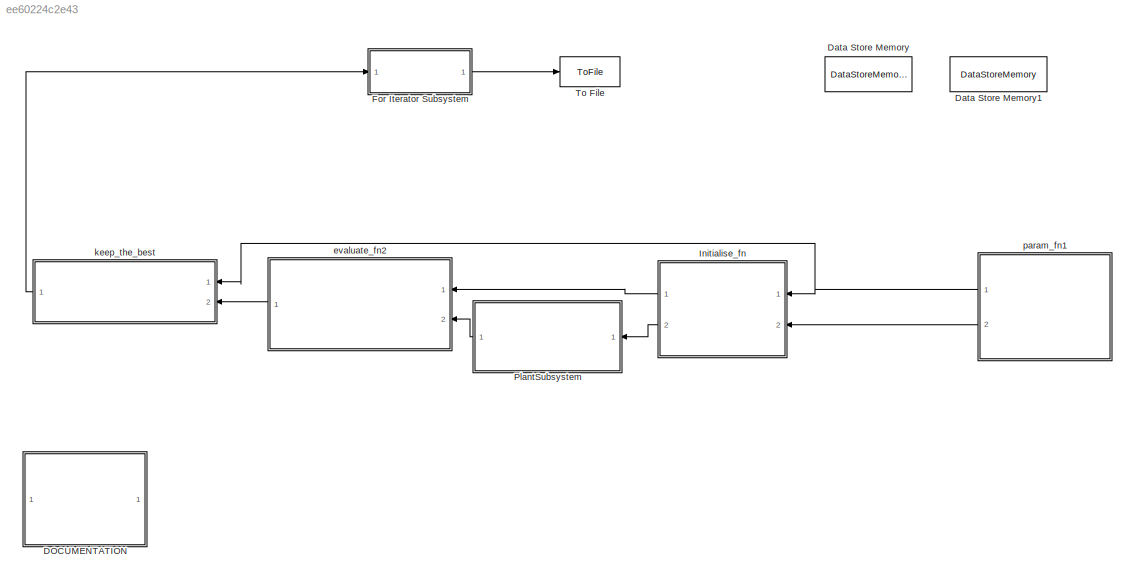
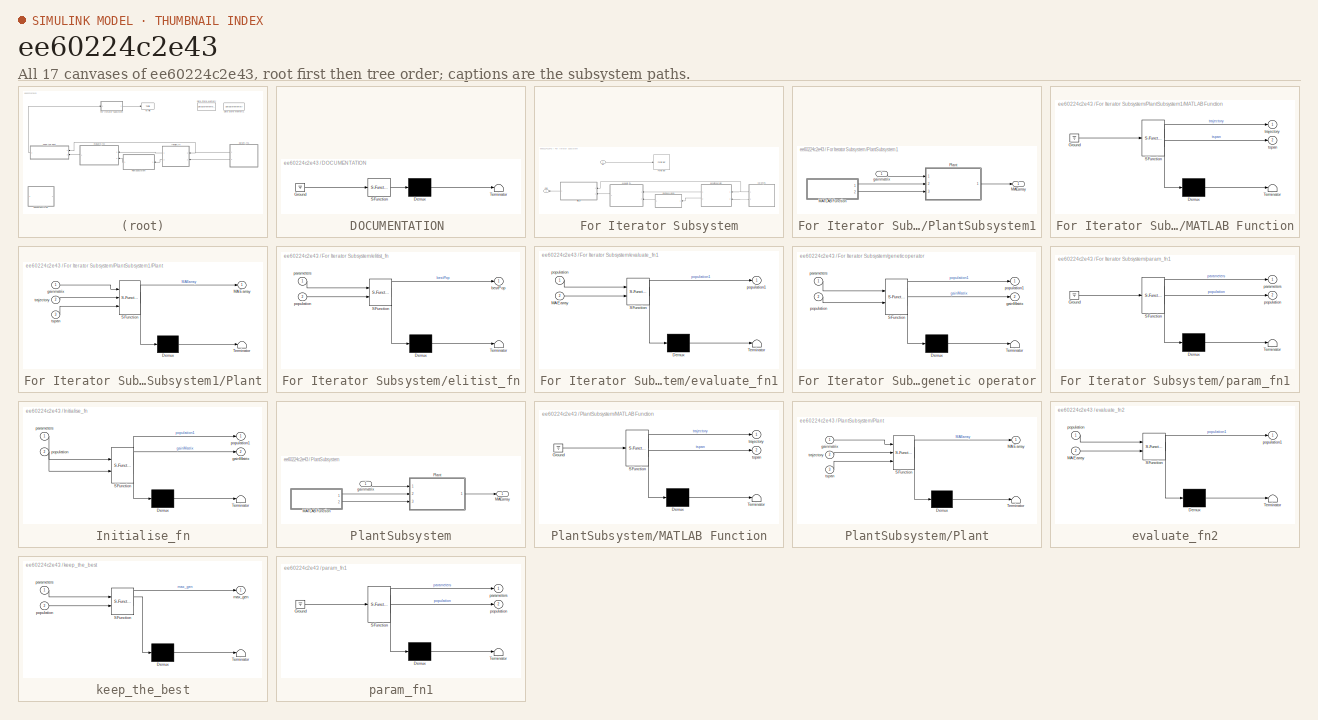
[diagram: thumbnail index - all 17 canvases of the model, root first then tree order]
MODEL slx_ee60224c2e43
KIND model
CONFIG AbsTol = auto
CONFIG FixedStep = auto
CONFIG MaxStep = auto
CONFIG MinStep = auto
CONFIG RelTol = 1e-3
CONFIG SampleTimeConstraint = Unconstrained
CONFIG Solver = ode45
CONFIG SolverMode = Auto
CONFIG SolverName = ode45
CONFIG StartTime = 0.0
CONFIG StopTime = 1
BLOCK [SubSystem] DOCUMENTATION 
  ErrorFcn = Stateflow.Translate.translate
  PermitHierarchicalResolution = ExplicitOnly
  Ports = []
  RequestExecContextInheritance = off
  SFBlockType = MATLAB Function
  TreatAsAtomicUnit = on
BLOCK [Demux] DOCUMENTATION / Demux 
  Outputs = 1
  Ports = [1, 1]
BLOCK [Ground] DOCUMENTATION / Ground 
BLOCK [S-Function] DOCUMENTATION / SFunction 
  EnableBusSupport = on
  FunctionName = sf_sfun
  PortCounts = [1 1]
  Ports = [1, 1]
  Tag = Stateflow S-Function VTOL_simulink_model3 4
BLOCK [Terminator] DOCUMENTATION / Terminator 
BLOCK [DataStoreMemory] Data Store Memory
  DataStoreName = PARAMETERS
  InitialValue = [0 0 0 0 0 ]
  OutDataTypeStr = double
  SignalType = real
BLOCK [DataStoreMemory] Data Store Memory1
  DataStoreName = POPULATION
  InitialValue = zeros(101,9)
  OutDataTypeStr = double
  SignalType = real
BLOCK [SubSystem] For Iterator Subsystem
  Ports = [1, 1]
  RequestExecContextInheritance = off
  TreatAsAtomicUnit = on
BLOCK [ForIterator] For Iterator Subsystem/For Iterator
  IterationSource = external
  Ports = [1]
  ResetStates = reset
  ShowIterationPort = off
BLOCK [Inport] For Iterator Subsystem/In1
  IconDisplay = Port number
BLOCK [Outport] For Iterator Subsystem/Out1
  IconDisplay = Port number
BLOCK [SubSystem] For Iterator Subsystem/PlantSubsystem1
  Ports = [1, 1]
  RequestExecContextInheritance = off
BLOCK [Outport] For Iterator Subsystem/PlantSubsystem1/MAEarray
  IconDisplay = Port number
BLOCK [SubSystem] For Iterator Subsystem/PlantSubsystem1/MATLAB Function
  ErrorFcn = Stateflow.Translate.translate
  PermitHierarchicalResolution = ExplicitOnly
  Ports = [0, 2]
  RequestExecContextInheritance = off
  SFBlockType = MATLAB Function
  TreatAsAtomicUnit = on
BLOCK [Demux] For Iterator Subsystem/PlantSubsystem1/MATLAB Function/ Demux 
  Outputs = 1
  Ports = [1, 1]
BLOCK [Ground] For Iterator Subsystem/PlantSubsystem1/MATLAB Function/ Ground 
BLOCK [S-Function] For Iterator Subsystem/PlantSubsystem1/MATLAB Function/ SFunction 
  EnableBusSupport = on
  FunctionName = sf_sfun
  PortCounts = [1 3]
  Ports = [1, 3]
  Tag = Stateflow S-Function VTOL_simulink_model3 14
BLOCK [Terminator] For Iterator Subsystem/PlantSubsystem1/MATLAB Function/ Terminator 
BLOCK [Outport] For Iterator Subsystem/PlantSubsystem1/MATLAB Function/trajectory
  IconDisplay = Port number
BLOCK [Outport] For Iterator Subsystem/PlantSubsystem1/MATLAB Function/tspan
  IconDisplay = Port number
  Port = 2
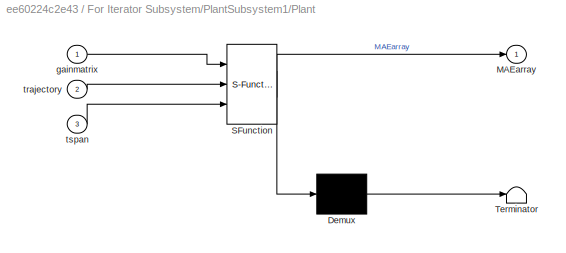
BLOCK [SubSystem] For Iterator Subsystem/PlantSubsystem1/Plant
  ErrorFcn = Stateflow.Translate.translate
  PermitHierarchicalResolution = ExplicitOnly
  Ports = [3, 1]
  RequestExecContextInheritance = off
  SFBlockType = MATLAB Function
  TreatAsAtomicUnit = on
BLOCK [Demux] For Iterator Subsystem/PlantSubsystem1/Plant/ Demux 
  Outputs = 1
  Ports = [1, 1]
BLOCK [S-Function] For Iterator Subsystem/PlantSubsystem1/Plant/ SFunction 
  EnableBusSupport = on
  FunctionName = sf_sfun
  PortCounts = [3 2]
  Ports = [3, 2]
  Tag = Stateflow S-Function VTOL_simulink_model3 15
BLOCK [Terminator] For Iterator Subsystem/PlantSubsystem1/Plant/ Terminator 
BLOCK [Outport] For Iterator Subsystem/PlantSubsystem1/Plant/MAEarray
  IconDisplay = Port number
BLOCK [Inport] For Iterator Subsystem/PlantSubsystem1/Plant/gainmatrix
  IconDisplay = Port number
BLOCK [Inport] For Iterator Subsystem/PlantSubsystem1/Plant/trajectory
  IconDisplay = Port number
  Port = 2
BLOCK [Inport] For Iterator Subsystem/PlantSubsystem1/Plant/tspan
  IconDisplay = Port number
  Port = 3
BLOCK [Inport] For Iterator Subsystem/PlantSubsystem1/gainmatrix
  IconDisplay = Port number
BLOCK [SubSystem] For Iterator Subsystem/elitist_fn
  ErrorFcn = Stateflow.Translate.translate
  PermitHierarchicalResolution = ExplicitOnly
  Ports = [2, 1]
  RequestExecContextInheritance = off
  SFBlockType = MATLAB Function
  TreatAsAtomicUnit = on
BLOCK [Demux] For Iterator Subsystem/elitist_fn/ Demux 
  Outputs = 1
  Ports = [1, 1]
BLOCK [S-Function] For Iterator Subsystem/elitist_fn/ SFunction 
  EnableBusSupport = on
  FunctionName = sf_sfun
  PortCounts = [2 2]
  Ports = [2, 2]
  Tag = Stateflow S-Function VTOL_simulink_model3 9
BLOCK [Terminator] For Iterator Subsystem/elitist_fn/ Terminator 
BLOCK [Outport] For Iterator Subsystem/elitist_fn/bestPop
  IconDisplay = Port number
BLOCK [Inport] For Iterator Subsystem/elitist_fn/parameters
  IconDisplay = Port number
BLOCK [Inport] For Iterator Subsystem/elitist_fn/population
  IconDisplay = Port number
  Port = 2
BLOCK [SubSystem] For Iterator Subsystem/evaluate_fn1
  ErrorFcn = Stateflow.Translate.translate
  PermitHierarchicalResolution = ExplicitOnly
  Ports = [2, 1]
  RequestExecContextInheritance = off
  SFBlockType = MATLAB Function
  TreatAsAtomicUnit = on
BLOCK [Demux] For Iterator Subsystem/evaluate_fn1/ Demux 
  Outputs = 1
  Ports = [1, 1]
BLOCK [S-Function] For Iterator Subsystem/evaluate_fn1/ SFunction 
  EnableBusSupport = on
  FunctionName = sf_sfun
  PortCounts = [2 2]
  Ports = [2, 2]
  Tag = Stateflow S-Function VTOL_simulink_model3 10
BLOCK [Terminator] For Iterator Subsystem/evaluate_fn1/ Terminator 
BLOCK [Inport] For Iterator Subsystem/evaluate_fn1/MAEarray
  IconDisplay = Port number
  Port = 2
BLOCK [Inport] For Iterator Subsystem/evaluate_fn1/population
  IconDisplay = Port number
BLOCK [Outport] For Iterator Subsystem/evaluate_fn1/population1
  IconDisplay = Port number
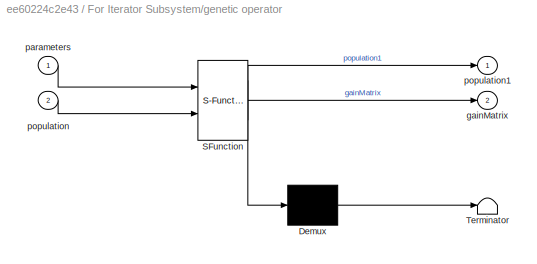
BLOCK [SubSystem] For Iterator Subsystem/genetic operator
  ErrorFcn = Stateflow.Translate.translate
  PermitHierarchicalResolution = ExplicitOnly
  Ports = [2, 2]
  RequestExecContextInheritance = off
  SFBlockType = MATLAB Function
  TreatAsAtomicUnit = on
BLOCK [Demux] For Iterator Subsystem/genetic operator/ Demux 
  Outputs = 1
  Ports = [1, 1]
BLOCK [S-Function] For Iterator Subsystem/genetic operator/ SFunction 
  EnableBusSupport = on
  FunctionName = sf_sfun
  PortCounts = [2 3]
  Ports = [2, 3]
  Tag = Stateflow S-Function VTOL_simulink_model3 11
BLOCK [Terminator] For Iterator Subsystem/genetic operator/ Terminator 
BLOCK [Outport] For Iterator Subsystem/genetic operator/gainMatrix
  IconDisplay = Port number
  Port = 2
BLOCK [Inport] For Iterator Subsystem/genetic operator/parameters
  IconDisplay = Port number
BLOCK [Inport] For Iterator Subsystem/genetic operator/population
  IconDisplay = Port number
  Port = 2
BLOCK [Outport] For Iterator Subsystem/genetic operator/population1
  IconDisplay = Port number
BLOCK [SubSystem] For Iterator Subsystem/param_fn1
  ErrorFcn = Stateflow.Translate.translate
  PermitHierarchicalResolution = ExplicitOnly
  Ports = [0, 2]
  RequestExecContextInheritance = off
  SFBlockType = MATLAB Function
  TreatAsAtomicUnit = on
BLOCK [Demux] For Iterator Subsystem/param_fn1/ Demux 
  Outputs = 1
  Ports = [1, 1]
BLOCK [Ground] For Iterator Subsystem/param_fn1/ Ground 
BLOCK [S-Function] For Iterator Subsystem/param_fn1/ SFunction 
  EnableBusSupport = on
  FunctionName = sf_sfun
  PortCounts = [1 3]
  Ports = [1, 3]
  Tag = Stateflow S-Function VTOL_simulink_model3 1
BLOCK [Terminator] For Iterator Subsystem/param_fn1/ Terminator 
BLOCK [Outport] For Iterator Subsystem/param_fn1/parameters
  IconDisplay = Port number
BLOCK [Outport] For Iterator Subsystem/param_fn1/population
  IconDisplay = Port number
  Port = 2
BLOCK [SubSystem] Initialise_fn
  ErrorFcn = Stateflow.Translate.translate
  PermitHierarchicalResolution = ExplicitOnly
  Ports = [2, 2]
  RequestExecContextInheritance = off
  SFBlockType = MATLAB Function
  TreatAsAtomicUnit = on
BLOCK [Demux] Initialise_fn/ Demux 
  Outputs = 1
  Ports = [1, 1]
BLOCK [S-Function] Initialise_fn/ SFunction 
  EnableBusSupport = on
  FunctionName = sf_sfun
  PortCounts = [2 3]
  Ports = [2, 3]
  Tag = Stateflow S-Function VTOL_simulink_model3 5
BLOCK [Terminator] Initialise_fn/ Terminator 
BLOCK [Outport] Initialise_fn/gainMatrix
  IconDisplay = Port number
  Port = 2
BLOCK [Inport] Initialise_fn/parameters
  IconDisplay = Port number
BLOCK [Inport] Initialise_fn/population
  IconDisplay = Port number
  Port = 2
BLOCK [Outport] Initialise_fn/population1
  IconDisplay = Port number
BLOCK [SubSystem] PlantSubsystem
  Ports = [1, 1]
  RequestExecContextInheritance = off
BLOCK [Outport] PlantSubsystem/MAEarray
  IconDisplay = Port number
BLOCK [SubSystem] PlantSubsystem/MATLAB Function
  ErrorFcn = Stateflow.Translate.translate
  PermitHierarchicalResolution = ExplicitOnly
  Ports = [0, 2]
  RequestExecContextInheritance = off
  SFBlockType = MATLAB Function
  TreatAsAtomicUnit = on
BLOCK [Demux] PlantSubsystem/MATLAB Function/ Demux 
  Outputs = 1
  Ports = [1, 1]
BLOCK [Ground] PlantSubsystem/MATLAB Function/ Ground 
BLOCK [S-Function] PlantSubsystem/MATLAB Function/ SFunction 
  EnableBusSupport = on
  FunctionName = sf_sfun
  PortCounts = [1 3]
  Ports = [1, 3]
  Tag = Stateflow S-Function VTOL_simulink_model3 6
BLOCK [Terminator] PlantSubsystem/MATLAB Function/ Terminator 
BLOCK [Outport] PlantSubsystem/MATLAB Function/trajectory
  IconDisplay = Port number
BLOCK [Outport] PlantSubsystem/MATLAB Function/tspan
  IconDisplay = Port number
  Port = 2
BLOCK [SubSystem] PlantSubsystem/Plant
  ErrorFcn = Stateflow.Translate.translate
  PermitHierarchicalResolution = ExplicitOnly
  Ports = [3, 1]
  RequestExecContextInheritance = off
  SFBlockType = MATLAB Function
  TreatAsAtomicUnit = on
BLOCK [Demux] PlantSubsystem/Plant/ Demux 
  Outputs = 1
  Ports = [1, 1]
BLOCK [S-Function] PlantSubsystem/Plant/ SFunction 
  EnableBusSupport = on
  FunctionName = sf_sfun
  PortCounts = [3 2]
  Ports = [3, 2]
  Tag = Stateflow S-Function VTOL_simulink_model3 12
BLOCK [Terminator] PlantSubsystem/Plant/ Terminator 
BLOCK [Outport] PlantSubsystem/Plant/MAEarray
  IconDisplay = Port number
BLOCK [Inport] PlantSubsystem/Plant/gainmatrix
  IconDisplay = Port number
BLOCK [Inport] PlantSubsystem/Plant/trajectory
  IconDisplay = Port number
  Port = 2
BLOCK [Inport] PlantSubsystem/Plant/tspan
  IconDisplay = Port number
  Port = 3
BLOCK [Inport] PlantSubsystem/gainmatrix
  IconDisplay = Port number
BLOCK [ToFile] To File
  Filename = report.mat
  Ports = [1]
  SampleTime = .1
BLOCK [SubSystem] evaluate_fn2
  ErrorFcn = Stateflow.Translate.translate
  PermitHierarchicalResolution = ExplicitOnly
  Ports = [2, 1]
  RequestExecContextInheritance = off
  SFBlockType = MATLAB Function
  TreatAsAtomicUnit = on
BLOCK [Demux] evaluate_fn2/ Demux 
  Outputs = 1
  Ports = [1, 1]
BLOCK [S-Function] evaluate_fn2/ SFunction 
  EnableBusSupport = on
  FunctionName = sf_sfun
  PortCounts = [2 2]
  Ports = [2, 2]
  Tag = Stateflow S-Function VTOL_simulink_model3 8
BLOCK [Terminator] evaluate_fn2/ Terminator 
BLOCK [Inport] evaluate_fn2/MAEarray
  IconDisplay = Port number
  Port = 2
BLOCK [Inport] evaluate_fn2/population
  IconDisplay = Port number
BLOCK [Outport] evaluate_fn2/population1
  IconDisplay = Port number
BLOCK [SubSystem] keep_the_best
  ErrorFcn = Stateflow.Translate.translate
  PermitHierarchicalResolution = ExplicitOnly
  Ports = [2, 1]
  RequestExecContextInheritance = off
  SFBlockType = MATLAB Function
  TreatAsAtomicUnit = on
BLOCK [Demux] keep_the_best/ Demux 
  Outputs = 1
  Ports = [1, 1]
BLOCK [S-Function] keep_the_best/ SFunction 
  EnableBusSupport = on
  FunctionName = sf_sfun
  PortCounts = [2 2]
  Ports = [2, 2]
  Tag = Stateflow S-Function VTOL_simulink_model3 13
BLOCK [Terminator] keep_the_best/ Terminator 
BLOCK [Outport] keep_the_best/max_gen
  IconDisplay = Port number
BLOCK [Inport] keep_the_best/parameters
  IconDisplay = Port number
BLOCK [Inport] keep_the_best/population
  IconDisplay = Port number
  Port = 2
BLOCK [SubSystem] param_fn1
  ErrorFcn = Stateflow.Translate.translate
  PermitHierarchicalResolution = ExplicitOnly
  Ports = [0, 2]
  RequestExecContextInheritance = off
  SFBlockType = MATLAB Function
  TreatAsAtomicUnit = on
BLOCK [Demux] param_fn1/ Demux 
  Outputs = 1
  Ports = [1, 1]
BLOCK [Ground] param_fn1/ Ground 
BLOCK [S-Function] param_fn1/ SFunction 
  EnableBusSupport = on
  FunctionName = sf_sfun
  PortCounts = [1 3]
  Ports = [1, 3]
  Tag = Stateflow S-Function VTOL_simulink_model3 7
BLOCK [Terminator] param_fn1/ Terminator 
BLOCK [Outport] param_fn1/parameters
  IconDisplay = Port number
BLOCK [Outport] param_fn1/population
  IconDisplay = Port number
  Port = 2
LINE For Iterator Subsystem/In1:1 -> For Iterator Subsystem/For Iterator:1
LINE For Iterator Subsystem/PlantSubsystem1/MATLAB Function:1 -> For Iterator Subsystem/PlantSubsystem1/Plant:2
LINE For Iterator Subsystem/PlantSubsystem1/MATLAB Function:2 -> For Iterator Subsystem/PlantSubsystem1/Plant:3
LINE For Iterator Subsystem/PlantSubsystem1/Plant:1 -> For Iterator Subsystem/PlantSubsystem1/MAEarray:1
LINE For Iterator Subsystem/PlantSubsystem1/gainmatrix:1 -> For Iterator Subsystem/PlantSubsystem1/Plant:1
LINE For Iterator Subsystem/PlantSubsystem1:1 -> For Iterator Subsystem/evaluate_fn1:2
LINE For Iterator Subsystem/elitist_fn:1 -> For Iterator Subsystem/Out1:1
LINE For Iterator Subsystem/evaluate_fn1:1 -> For Iterator Subsystem/elitist_fn:2
LINE For Iterator Subsystem/genetic operator:1 -> For Iterator Subsystem/evaluate_fn1:1
LINE For Iterator Subsystem/genetic operator:2 -> For Iterator Subsystem/PlantSubsystem1:1
NET For Iterator Subsystem/param_fn1:1 -> For Iterator Subsystem/elitist_fn:1, For Iterator Subsystem/genetic operator:1
LINE For Iterator Subsystem/param_fn1:2 -> For Iterator Subsystem/genetic operator:2
LINE For Iterator Subsystem:1 -> To File:1
LINE Initialise_fn:1 -> evaluate_fn2:1
LINE Initialise_fn:2 -> PlantSubsystem:1
LINE PlantSubsystem/MATLAB Function:1 -> PlantSubsystem/Plant:2
LINE PlantSubsystem/MATLAB Function:2 -> PlantSubsystem/Plant:3
LINE PlantSubsystem/Plant:1 -> PlantSubsystem/MAEarray:1
LINE PlantSubsystem/gainmatrix:1 -> PlantSubsystem/Plant:1
LINE PlantSubsystem:1 -> evaluate_fn2:2
LINE evaluate_fn2:1 -> keep_the_best:2
LINE keep_the_best:1 -> For Iterator Subsystem:1
NET param_fn1:1 -> Initialise_fn:1, keep_the_best:1
LINE param_fn1:2 -> Initialise_fn:2
note: NET lines group one-source signal fan-out (src -> all destinations, sorted); 1:1 wires keep LINE
CHART For Iterator
Subsystem/param_fn1 states=1 transitions=1
  STATE_LABEL 'eML_blk_kernel()'
  STATE_LABEL 'SCRIPT:\nfunction [parameters,population]= param_fn\n\nglobal PARAMETERS;\nglobal POPULATION;\n\nparameters = PARAMETERS;\npopulation = POPULATION;\nend\n\n\n\n\n\n'
CHART DOCUMENTATION
 states=1 transitions=1
  STATE_LABEL 'eML_blk_kernel()'
  STATE_LABEL 'SCRIPT:\nfunction Documentation()\n\n%1. In REPORT.MAT sample time can be set so that results are saved only for those time instants\n%2. In FOR ITERATOR parameter " states when starting": reset: states are\n%   reset prior to each time step \n% bounds for PID gains are defined twice: once in initialise() and another time in mutate() \n\n\n\n\n\n\nend\n\n\n'
CHART Initialise_fn states=1 transitions=1
  STATE_LABEL 'eML_blk_kernel()'
  STATE_LABEL 'SCRIPT:\nfunction [population1,gainMatrix]= initialize (parameters,population)\n%\n\n% \n%  Purpose:\n%\n%    INITIALIZE initializes the genes within the variables bounds. \n%\n% \n\n  \n \n  \n \n   kp_lb=0.01;\n   kp_ub=10;\n   kd_lb=0.01;\n   kd_ub=10;\n   ki_lb=.01;\n   ki_ub=10;\n   \n   kp_dash_lb =0.01;\n   kp_dash_ub =10;\n   kd_dash_lb =0.01;\n   kd_dash_ub =10;\n   ki_dash_lb =.01;\n   ki_dash_ub =10;\n\n% \n%  Initi...<+805ch>'
CHART PlantSubsystem/MATLAB Function states=1 transitions=1
  STATE_LABEL 'eML_blk_kernel()'
  STATE_LABEL 'SCRIPT:\nfunction [trajectory,tspan] = traj()\n\ntspan = 0:.01:5;\ntrajectory = zeros(length(tspan),6);\n\n%% sinusoid\n% for i =1:length(tspan)\n% \n%     initial_pos = [0; 0];\n%     v_max_y = 2;\n%     a_max_y = 2;\n% \n%     % Y\n%     if tspan(i) <= v_max_y/a_max_y\n%       dt = tspan(i);\n%       acc_y = a_max_y;\n%       vel_y = acc_y*dt;\n%       pos_y = 0.5*acc_y*dt.^2;\n%     elseif tspan(i) <= 2*v_max_y/a...<+1737ch>'
CHART param_fn1 states=1 transitions=1
  STATE_LABEL 'eML_blk_kernel()'
  STATE_LABEL 'SCRIPT:\nfunction [parameters,population]= param_fn()\n\n%  Parameters:\n%\n%    MAXGENS is the maximum number of generations.\n%\n%    NVARS is the number of problem variables.\n%\n%    PMUTATION is the probability of mutation.\n%\n%    POPSIZE is the population size. \n%\n%    PXOVER is the probability of crossover.                          \n%\n parameters = zeros(5,1);\n parameters(1) = 100; % POPSIZE =20;\n p...<+508ch>'
CHART evaluate_fn2 states=1 transitions=1
  STATE_LABEL 'eML_blk_kernel()'
  STATE_LABEL 'SCRIPT:\nfunction population1 = evaluate_fn(population,MAEarray)\n\n\n%****************************************************************************80\n% \n%  Purpose:calculate fitness for each member of the population\n%\n%\n%    \n   [r, c] =size(MAEarray);\n    for  i = 1:r\n  \n         population(i,7) = 1/(MAEarray(i)+.001);    \n      \n    end\n    \n    population1 = population;\nend\n  %*********************...<+58ch>'
CHART For Iterator
Subsystem/elitist_fn states=1 transitions=1
  STATE_LABEL 'eML_blk_kernel()'
  STATE_LABEL 'SCRIPT:\nfunction bestPop  = elitist (parameters,population)\n\n%ELITIST\n\n\n%****************************************************************************80\n% \n%  Purpose:\n%\n%    ELITIST stores the best member of the previous generation.\n%\n%  Discussion:\n%\n%    The best member of the previous generation is stored as \n%    the last in the array. If the best member of the current \n%    generation is wors...<+1894ch>'
CHART For Iterator
Subsystem/evaluate_fn1 states=1 transitions=1
  STATE_LABEL 'eML_blk_kernel()'
  STATE_LABEL 'SCRIPT:\nfunction population1 = evaluate_fn(population,MAEarray)\n\n\n%****************************************************************************80\n% \n%  Purpose:calculate fitness for each member of the population\n%\n%\n%    \n   \n    [r, c] = size(MAEarray);\n    for  mem = 1:r\n  \n    population(mem,7) = 1/(MAEarray(mem)+.001);    \n      \n    end\n    \n    population1 = population;\nend\n  %**************...<+65ch>'
CHART For Iterator
Subsystem/genetic operator states=1 transitions=1
  STATE_LABEL 'eML_blk_kernel()'
  STATE_LABEL 'SCRIPT:\nfunction [population1,gainMatrix]  =genetic_operator(parameters,population)\n\n newpopulation = zeros(101 , 9);\n\n%%\n%SELECTOR FN\n%****************************************************************************80\n% \n%  Purpose:\n%\n%    SELECTOR is the selection function.\n%\n%  Discussion:\n%\n%    Standard proportional selection for maximization problems incorporating \n%    the elitist model.  This ...<+3608ch>'
CHART PlantSubsystem/Plant states=1 transitions=1
  STATE_LABEL 'eML_blk_kernel()'
  STATE_LABEL "SCRIPT:\nfunction MAEarray = plant(gainmatrix,trajectory,tspan)\n%Calculating MAE based on the termination criteria set in 'simulation 2d.m'\n% trajectory = Length(tspan)*6 matrix\nparams.gravity = 9.81;\nparams.mass = 0.18;\nparams.Ixx = 0.00025;\nparams.arm_length = 0.086;\nparams.minF = 0;\nparams.maxF = 2*.18*9.81;\ndt = 0.01;\n[popsize,~] = size(gainmatrix);\n MAEarray =zeros(popsize,1);\n\n% State:\n%[y; z...<+2100ch>"
CHART keep_the_best states=1 transitions=1
  STATE_LABEL 'eML_blk_kernel()'
  STATE_LABEL 'SCRIPT:\nfunction max_gen = keep_the_best (parameters,population)\n\n\n%****************************************************************************80\n% \n%  Purpose:\n%\n%    KEEP_THE_BEST keeps track of the best member of the population. \n%\n%  Discussion:\n%\n%    Note that the last entry in the array Population holds a \n%    copy of the best individual.\n%  Local parameters:\n%\n%    Local,  CUR_BEST, the ...<+594ch>'
CHART For Iterator
Subsystem/PlantSubsystem1/MATLAB Function states=1 transitions=1
  STATE_LABEL 'eML_blk_kernel()'
  STATE_LABEL 'SCRIPT:\nfunction [trajectory,tspan] = traj()\n\ntspan = 0:.01:5;\ntrajectory = zeros(length(tspan),6);\n\n%% sinusoid\n% for i =1:length(tspan)\n% \n%     initial_pos = [0; 0];\n%     v_max_y = 2;\n%     a_max_y = 2;\n% \n%     % Y\n%     if tspan(i) <= v_max_y/a_max_y\n%       dt = tspan(i);\n%       acc_y = a_max_y;\n%       vel_y = acc_y*dt;\n%       pos_y = 0.5*acc_y*dt.^2;\n%     elseif tspan(i) <= 2*v_max_y/a...<+1737ch>'
CHART For Iterator
Subsystem/PlantSubsystem1/Plant states=1 transitions=1
  STATE_LABEL 'eML_blk_kernel()'
  STATE_LABEL "SCRIPT:\nfunction MAEarray = plant(gainmatrix,trajectory,tspan)\n%Calculating MAE based on the termination criteria set in 'simulation 2d.m'\n% trajectory = Length(tspan)*6 matrix\nparams.gravity = 9.81;\nparams.mass = 0.18;\nparams.Ixx = 0.00025;\nparams.arm_length = 0.086;\nparams.minF = 0;\nparams.maxF = 2*.18*9.81;\ndt = 0.01;\n[popsize,~] = size(gainmatrix);\n MAEarray =zeros(popsize,1);\n\n% State:\n%[y; z...<+2134ch>"
